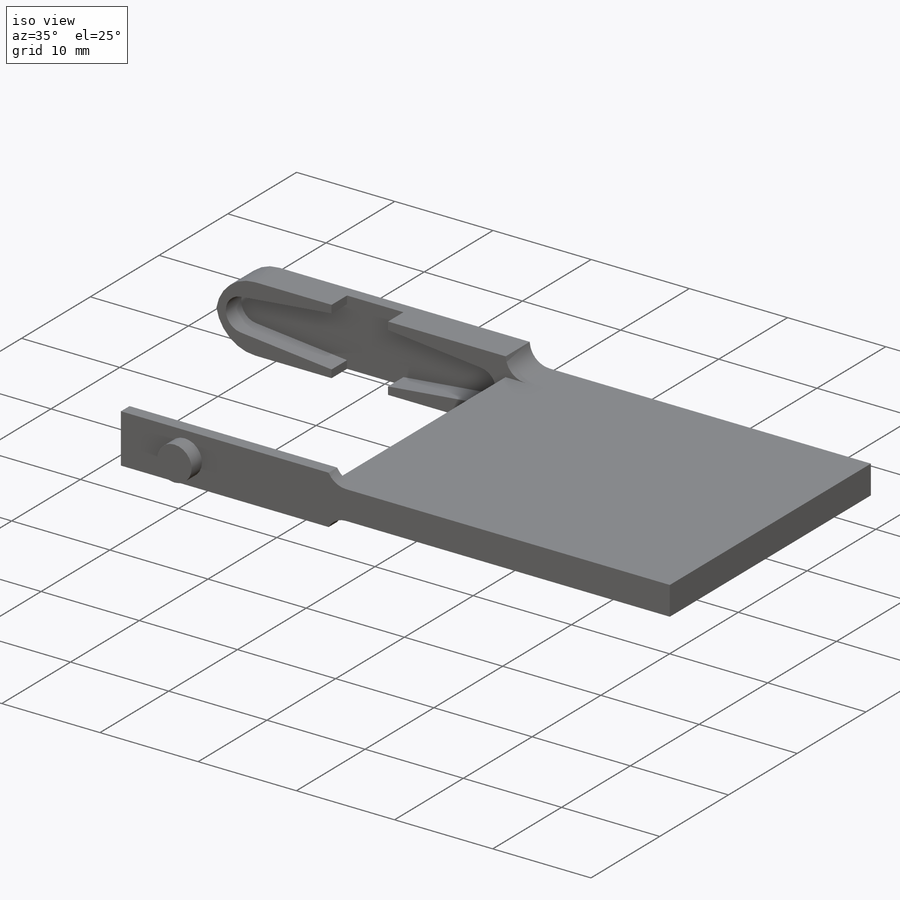
[diagram: iso view]
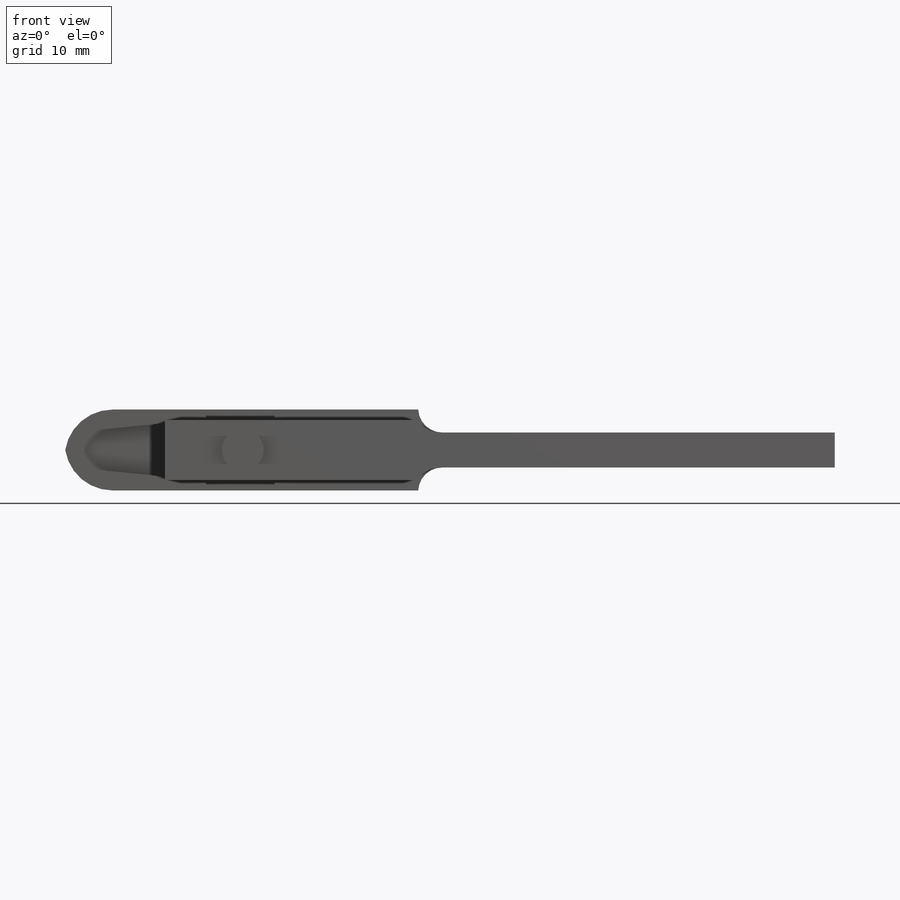
[diagram: front view]
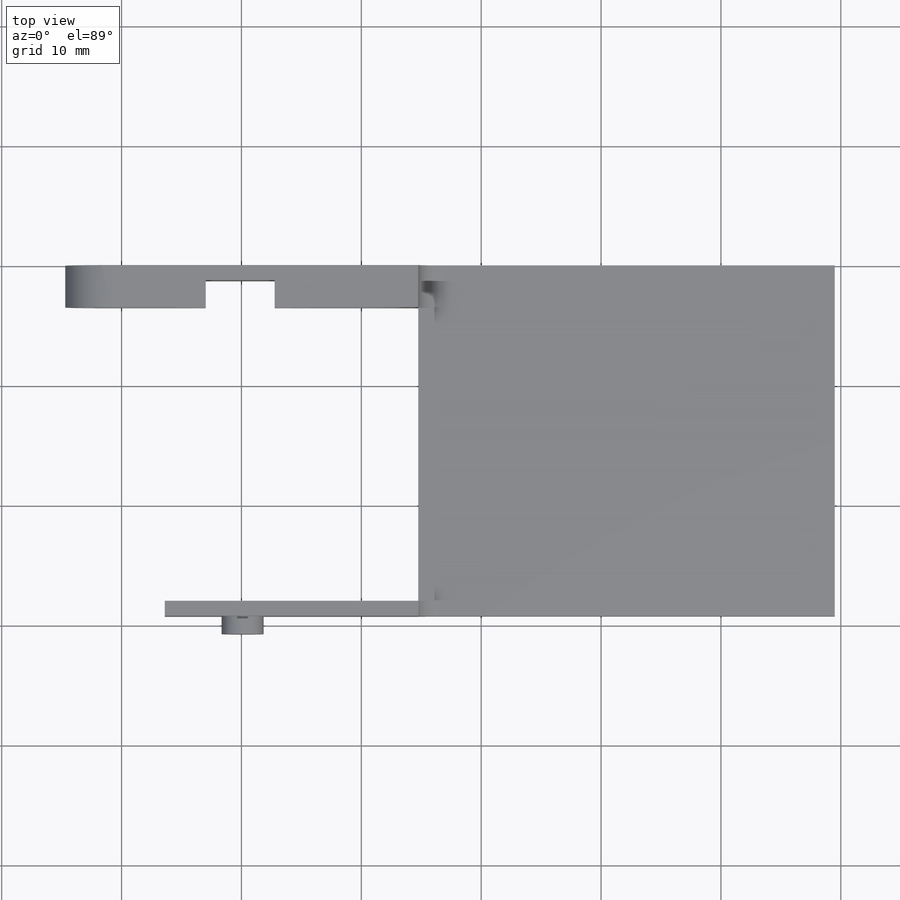
[diagram: top view]
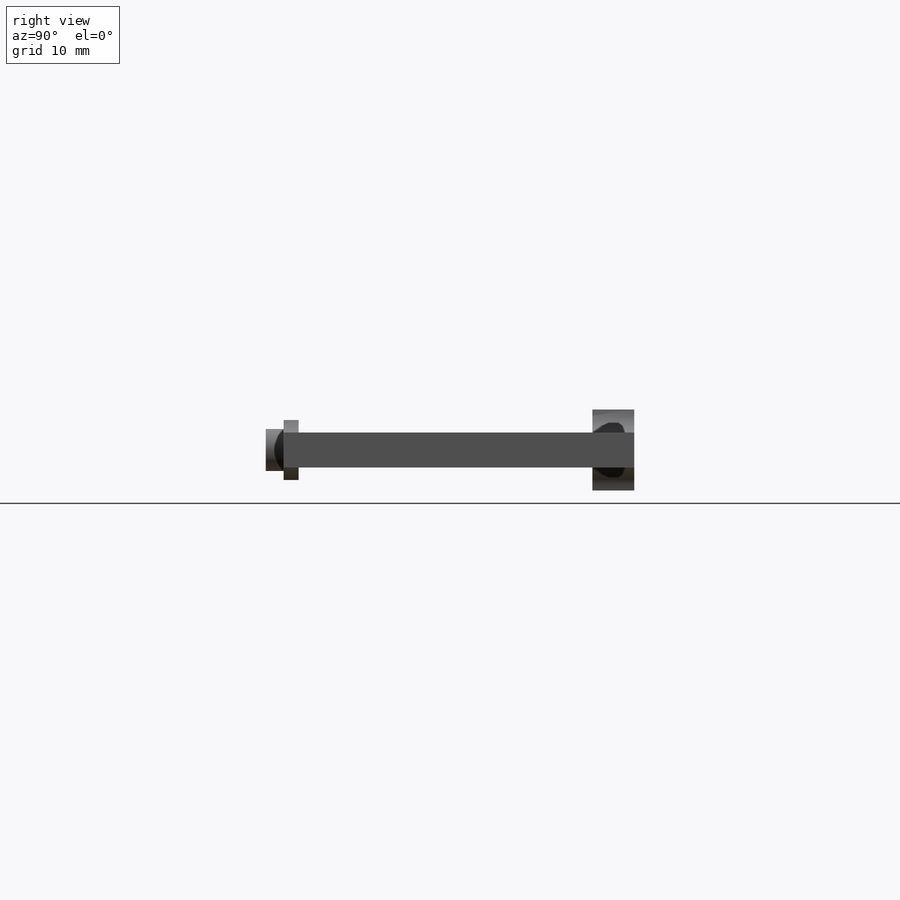
[diagram: right view]
SOLIDWORKS PART (.sldprt)
format: sldprt  version: not decoded by parser v0  size: 347,136 bytes
history: native  units: mm
features: sketch x6, extrude x5, fillet x2, material x1, plane x1, cut_extrude x1 (+13 scaffold rows collapsed)
feature tree (29):
  scaffold x13  (default folders/planes/origin — collapsed)
  material  "Material <not specified>"
  plane  "Ground Plane"
  sketch  "Sketch1"  dims[c1.D1=5.75mm c1.D10=~0.582869mm c1.D9=1.65mm c1.D2=13.25mm c1.D3=~2.924144mm c1.D4=35.0mm c1.D5=29.5mm c1.D6=13.25mm c1.D7=6.75mm c1.D8=~1.733279mm c2.D9=~5.029443mm c2.D11=27.5mm c2.D6=13.75mm c2.D10=1.0mm c2.D4=34.75mm c3.D4=~86.817562deg c4.D4=34.75mm c5.D4=~176.817562deg c6.D4=~45.431933mm c7.D4=~171.928586deg c7.D2=3.0]
  extrude  "Boss-Extrude10"  Depth=3.5mm
  extrude  "Boss-Extrude15"  [1 undecoded]
  sketch  "Sketch1<16>"  dims[D1=1.25mm]
  extrude  "Boss-Extrude17"  [1 undecoded]
  sketch  "Sketch1<17>"
  sketch  "Sketch2"  dims[c1.D1=3.5mm c1.D3=2.0mm c2.D1=17.0mm c2.D2=~2.924144mm c3.D2=90.0deg c4.D2=5.0mm c4.D1=5.0mm c5.D2=1.0mm c5.D3=~1.075856mm c6.D2=21.15mm c6.D3=0.0mm]
  extrude  "Boss-Extrude18"  Depth=1.25mm
  fillet  "Fillet1"  Radius=2mm
  fillet  "Fillet2"  Radius=4mm
  sketch  "Sketch3"
  cut_extrude  "Cut-Extrude1"  [1 undecoded]
  sketch  "Sketch4"  dims[D1=3.5mm]
  extrude  "Boss-Extrude19"  Depth=1.5mm
decode coverage: 9 of 14 modeling features carry decoded parameters
note: ~ marks probable driven/reference dimensions
note: 3 parameter values undecoded
summary: no parameter record found for 3 features
note: suppression state not decoded; provenance and decode notes live in map.json
